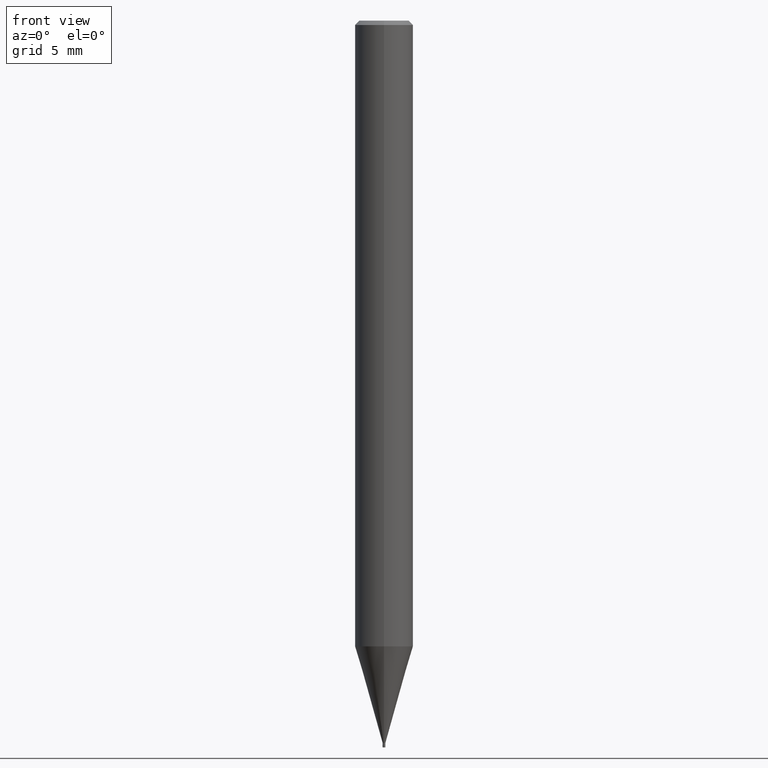
[diagram: clean part render]
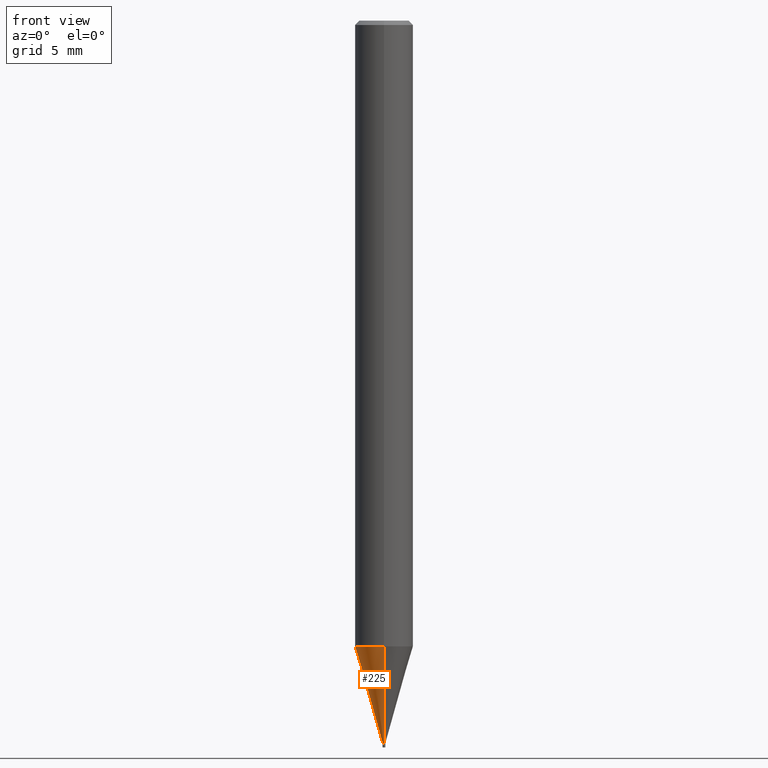
[diagram: same view with one face highlighted and labeled with its STEP entity id]
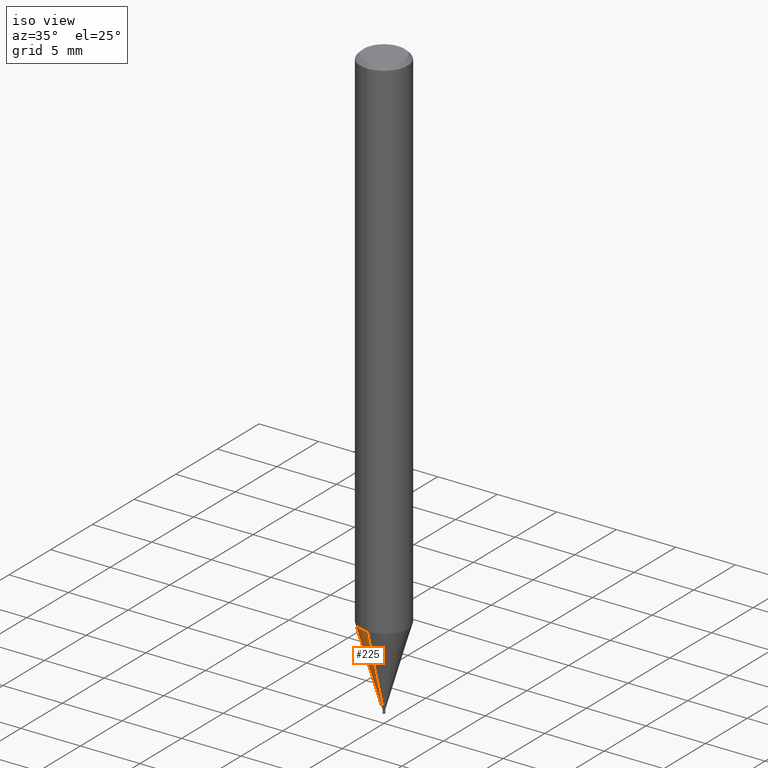
[diagram: same view with one face highlighted and labeled with its STEP entity id]
A machine part, front view. The second image highlights one B-rep face of the part: STEP entity #225.
A second angle (iso view) of the same face is appended — the face is thin or edge-on in the first view.
In plain terms, the highlighted conical surface has half-angle 16.001 deg.
Its self-contained STEP definition (entity closure, byte-faithful):
#143=VERTEX_POINT('',#378);
#145=VERTEX_POINT('',#380);
#201=EDGE_CURVE('',#265,#145,#439,.T.);
#217=VERTEX_POINT('',#456);
#225=ADVANCED_FACE('',(#464),#465,.T.);
#265=VERTEX_POINT('',#508);
#283=EDGE_CURVE('',#217,#143,#531,.T.);
#301=EDGE_CURVE('',#143,#145,#553,.T.);
#329=EDGE_CURVE('',#265,#217,#591,.T.);
#378=CARTESIAN_POINT('',(0.0,1.99995,-43.038));
#380=CARTESIAN_POINT('',(0.0,0.09245,-49.69));
#439=CIRCLE('',#719,0.09245);
#456=CARTESIAN_POINT('',(2.44915147732706E-016,-1.99995,-43.038));
#464=FACE_OUTER_BOUND('',#750,.T.);
#465=CONICAL_SURFACE('',#751,1.0462,0.279262361421134);
#508=CARTESIAN_POINT('',(1.13214857410879E-017,-0.09245,-49.69));
#531=CIRCLE('',#830,1.99995);
#553=LINE('',#858,#859);
#591=LINE('',#904,#905);
#719=AXIS2_PLACEMENT_3D('',#1005,#1006,#1007);
#750=EDGE_LOOP('',(#1034,#1035,#1036,#1037));
#751=AXIS2_PLACEMENT_3D('',#1038,#1039,#1040);
#830=AXIS2_PLACEMENT_3D('',#1117,#1118,#1119);
#858=CARTESIAN_POINT('',(-1.28118316736897E-016,1.0462,-46.364));
#859=VECTOR('',#1159,1.0);
#904=CARTESIAN_POINT('',(1.28118316736897E-016,-1.0462,-46.364));
#905=VECTOR('',#1225,1.0);
#1005=CARTESIAN_POINT('',(0.0,0.0,-49.69));
#1006=DIRECTION('',(0.0,0.0,-1.0));
#1007=DIRECTION('',(0.0,1.0,0.0));
#1034=ORIENTED_EDGE('',*,*,#301,.T.);
#1035=ORIENTED_EDGE('',*,*,#201,.F.);
#1036=ORIENTED_EDGE('',*,*,#329,.T.);
#1037=ORIENTED_EDGE('',*,*,#283,.T.);
#1038=CARTESIAN_POINT('',(0.0,0.0,-46.364));
#1039=DIRECTION('',(-0.0,-0.0,1.0));
#1040=DIRECTION('',(0.0,1.0,0.0));
#1117=CARTESIAN_POINT('',(0.0,0.0,-43.038));
#1118=DIRECTION('',(0.0,0.0,-1.0));
#1119=DIRECTION('',(0.0,1.0,0.0));
#1159=DIRECTION('',(3.37558653544073E-017,-0.275646661876649,-0.961259027419904));
#1225=DIRECTION('',(3.37558653544073E-017,-0.275646661876649,0.961259027419904));